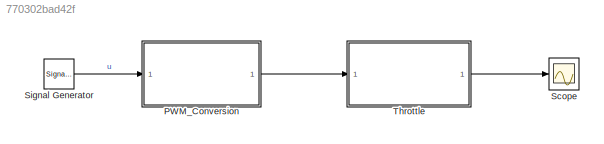
MODEL slx_770302bad42f
KIND model
CONFIG AbsTol = auto
CONFIG EnableMultiTasking = on
CONFIG FixedStep = auto
CONFIG MaxStep = auto
CONFIG MinStep = auto
CONFIG PreLoadFcn = load allParamValues
CONFIG RelTol = 1e-3
CONFIG SampleTimeConstraint = Unconstrained
CONFIG Solver = ode45
CONFIG SolverName = ode45
CONFIG StartTime = 0.0
CONFIG StopTime = 10.0
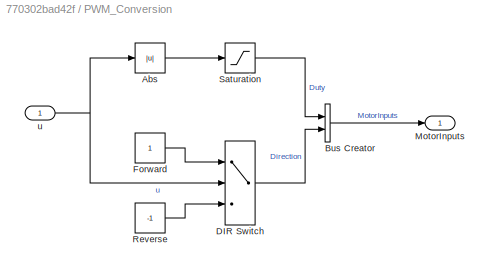
BLOCK [SubSystem] PWM_Conversion
  Ports = [1, 1]
  RequestExecContextInheritance = off
BLOCK [Abs] PWM_Conversion/Abs
  SaturateOnIntegerOverflow = off
BLOCK [BusCreator] PWM_Conversion/Bus Creator
  DisplayOption = bar
  InheritFromInputs = on
  Inputs = 2
  Ports = [2, 1]
BLOCK [Switch] PWM_Conversion/DIR Switch
  AttributesFormatString = Criteria: %<Criteria>\nThreshold: %<Threshold>
  InputSameDT = off
  SaturateOnIntegerOverflow = off
BLOCK [Constant] PWM_Conversion/Forward
  OutDataTypeStr = double
BLOCK [Outport] PWM_Conversion/MotorInputs
  IconDisplay = Port number
BLOCK [Constant] PWM_Conversion/Reverse
  OutDataTypeStr = double
  Value = -1
BLOCK [Saturate] PWM_Conversion/Saturation
  AttributesFormatString = %<LowerLimit> < duty < %<UpperLimit>
  InputPortMap = u0
  LowerLimit = 0
  Ports = [1, 1]
  UpperLimit = 1
BLOCK [Inport] PWM_Conversion/u
  IconDisplay = Port number
BLOCK [Scope] Scope
  Floating = off
  NumInputPorts = 1
  Ports = [1]
  ScopeSpecificationString = Simulink.scopes.TimeScopeBlockCfg('CurrentConfiguration', extmgr.ConfigurationSet(extmgr.Configuration('Core','General UI',true),extmgr.Configuration('Core','Source UI',true),extmgr.Configuration('Sources','WiredSimulink',true,'DataLoggingSaveFormat','StructureWithTime','DataLoggingLimitDataPoints',true,'DataLoggingDecimation','1','DataLoggingDecimateData',true),extmgr.Configuration('Visuals','Tim...<+1872ch>
BLOCK [SignalGenerator] Signal Generator
  Amplitude = 0.1
  Ports = [0, 1]
  WaveForm = square
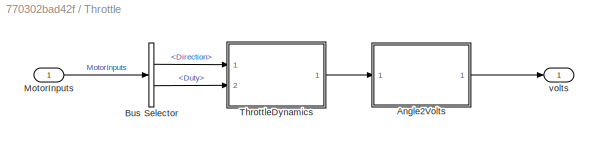
BLOCK [SubSystem] Throttle
  Ports = [1, 1]
  RequestExecContextInheritance = off
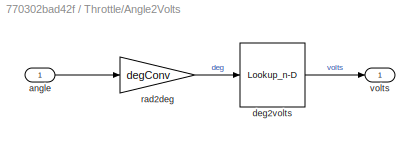
BLOCK [SubSystem] Throttle/Angle2Volts
  Ports = [1, 1]
  RequestExecContextInheritance = off
BLOCK [Inport] Throttle/Angle2Volts/angle 
  IconDisplay = Port number
BLOCK [Lookup_n-D] Throttle/Angle2Volts/deg2volts
  BreakpointsForDimension1 = [0 90]
  NumberOfTableDimensions = 1
  Ports = [1, 1]
  RndMeth = Simplest
  Table = [0.5 4.5]
BLOCK [Gain] Throttle/Angle2Volts/rad2deg
  Gain = degConv
BLOCK [Outport] Throttle/Angle2Volts/volts
  IconDisplay = Port number
BLOCK [BusSelector] Throttle/Bus Selector
  OutputAsBus = off
  OutputSignals = Direction,Duty
  Ports = [1, 2]
BLOCK [Inport] Throttle/MotorInputs
  IconDisplay = Port number
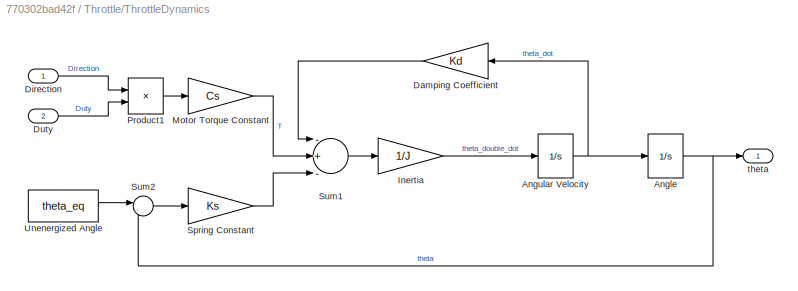
BLOCK [SubSystem] Throttle/ThrottleDynamics
  Ports = [2, 1]
  RequestExecContextInheritance = off
BLOCK [Integrator] Throttle/ThrottleDynamics/Angle
  AttributesFormatString = Initial condition: %<InitialCondition>\n%<LowerSaturationLimit> <= theta <= %<UpperSaturationLimit>
  InitialCondition = pi/6
  LimitOutput = on
  LowerSaturationLimit = 0
  Ports = [1, 1]
  UpperSaturationLimit = pi/2
BLOCK [Integrator] Throttle/ThrottleDynamics/Angular Velocity
  AttributesFormatString = Initial condition: %<InitialCondition>
  Ports = [1, 1]
BLOCK [Gain] Throttle/ThrottleDynamics/Damping Coefficient
  Gain = Kd
BLOCK [Inport] Throttle/ThrottleDynamics/Direction
  IconDisplay = Port number
BLOCK [Inport] Throttle/ThrottleDynamics/Duty
  IconDisplay = Port number
  Port = 2
BLOCK [Gain] Throttle/ThrottleDynamics/Inertia
  Gain = 1/J
BLOCK [Gain] Throttle/ThrottleDynamics/Motor Torque Constant
  Gain = Cs
BLOCK [Product] Throttle/ThrottleDynamics/Product1
  InputSameDT = off
  Ports = [2, 1]
  RndMeth = Floor
BLOCK [Gain] Throttle/ThrottleDynamics/Spring Constant
  Gain = Ks
BLOCK [Sum] Throttle/ThrottleDynamics/Sum1
  InputSameDT = off
  Inputs = -+-
  OutDataTypeStr = Inherit: Inherit via internal rule
  Ports = [3, 1]
BLOCK [Sum] Throttle/ThrottleDynamics/Sum2
  IconShape = round
  InputSameDT = off
  Inputs = |-+
  OutDataTypeStr = Inherit: Inherit via internal rule
  Ports = [2, 1]
BLOCK [Constant] Throttle/ThrottleDynamics/Unenergized Angle
  Value = theta_eq
BLOCK [Outport] Throttle/ThrottleDynamics/theta
  IconDisplay = Port number
BLOCK [Outport] Throttle/volts
  IconDisplay = Port number
LINE PWM_Conversion/Abs:1 -> PWM_Conversion/Saturation:1
LINE PWM_Conversion/Bus Creator:1 -> PWM_Conversion/MotorInputs:1
LINE PWM_Conversion/DIR Switch:1 -> PWM_Conversion/Bus Creator:2
LINE PWM_Conversion/Forward:1 -> PWM_Conversion/DIR Switch:1
LINE PWM_Conversion/Reverse:1 -> PWM_Conversion/DIR Switch:3
LINE PWM_Conversion/Saturation:1 -> PWM_Conversion/Bus Creator:1
NET PWM_Conversion/u:1 -> PWM_Conversion/Abs:1, PWM_Conversion/DIR Switch:2
LINE PWM_Conversion:1 -> Throttle:1
LINE Signal Generator:1 -> PWM_Conversion:1
LINE Throttle/Angle2Volts/angle :1 -> Throttle/Angle2Volts/rad2deg:1
LINE Throttle/Angle2Volts/deg2volts:1 -> Throttle/Angle2Volts/volts:1
LINE Throttle/Angle2Volts/rad2deg:1 -> Throttle/Angle2Volts/deg2volts:1
LINE Throttle/Angle2Volts:1 -> Throttle/volts:1
LINE Throttle/Bus Selector:1 -> Throttle/ThrottleDynamics:1
LINE Throttle/Bus Selector:2 -> Throttle/ThrottleDynamics:2
LINE Throttle/MotorInputs:1 -> Throttle/Bus Selector:1
NET Throttle/ThrottleDynamics/Angle:1 -> Throttle/ThrottleDynamics/Sum2:2, Throttle/ThrottleDynamics/theta:1
NET Throttle/ThrottleDynamics/Angular Velocity:1 -> Throttle/ThrottleDynamics/Angle:1, Throttle/ThrottleDynamics/Damping Coefficient:1
LINE Throttle/ThrottleDynamics/Damping Coefficient:1 -> Throttle/ThrottleDynamics/Sum1:1
LINE Throttle/ThrottleDynamics/Direction:1 -> Throttle/ThrottleDynamics/Product1:1
LINE Throttle/ThrottleDynamics/Duty:1 -> Throttle/ThrottleDynamics/Product1:2
LINE Throttle/ThrottleDynamics/Inertia:1 -> Throttle/ThrottleDynamics/Angular Velocity:1
LINE Throttle/ThrottleDynamics/Motor Torque Constant:1 -> Throttle/ThrottleDynamics/Sum1:2
LINE Throttle/ThrottleDynamics/Product1:1 -> Throttle/ThrottleDynamics/Motor Torque Constant:1
LINE Throttle/ThrottleDynamics/Spring Constant:1 -> Throttle/ThrottleDynamics/Sum1:3
LINE Throttle/ThrottleDynamics/Sum1:1 -> Throttle/ThrottleDynamics/Inertia:1
LINE Throttle/ThrottleDynamics/Sum2:1 -> Throttle/ThrottleDynamics/Spring Constant:1
LINE Throttle/ThrottleDynamics/Unenergized Angle:1 -> Throttle/ThrottleDynamics/Sum2:1
LINE Throttle/ThrottleDynamics:1 -> Throttle/Angle2Volts:1
LINE Throttle:1 -> Scope:1
note: NET lines group one-source signal fan-out (src -> all destinations, sorted); 1:1 wires keep LINE
